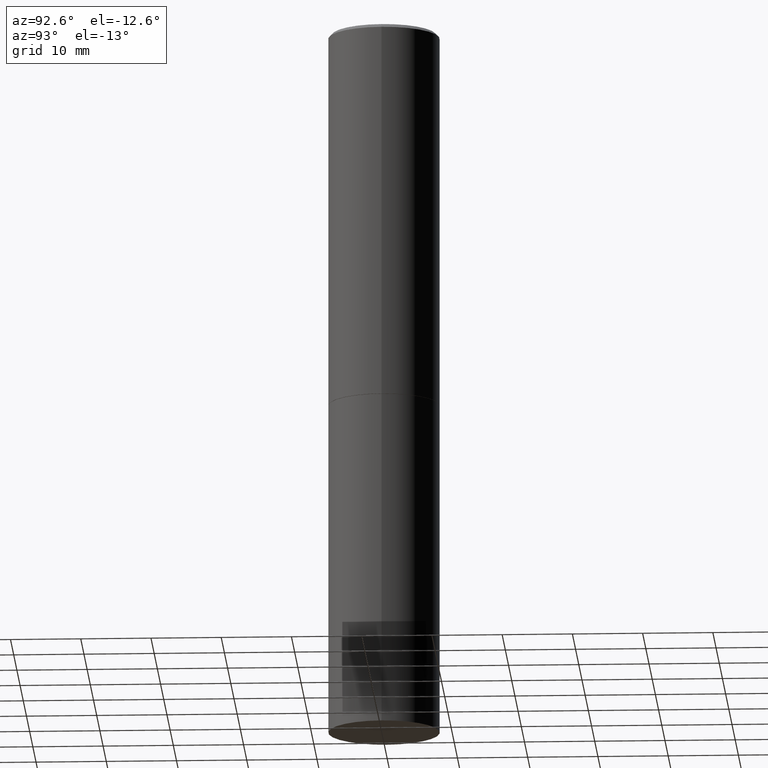
[diagram: clean part render]
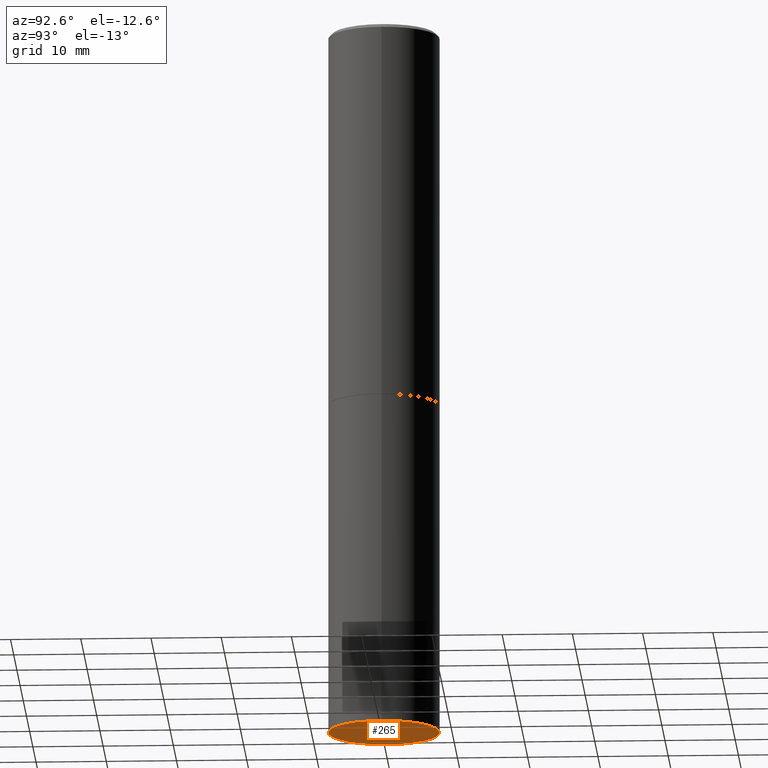
[diagram: same view with one face highlighted and labeled with its STEP entity id]
A machine part, auxiliary view. The second image highlights one B-rep face of the part: STEP entity #265.
In plain terms, the highlighted planar face has unit normal (0, -0, -1).
Its self-contained STEP definition (entity closure, byte-faithful):
#8 = ORIENTED_EDGE ( 'NONE', *, *, #171, .F. ) ;
#14 = VERTEX_POINT ( 'NONE', #268 ) ;
#17 = DIRECTION ( 'NONE',  ( -2.445468806185136597E-29, 3.491481338843145583E-15, 1.000000000000000000 ) ) ;
#27 = DIRECTION ( 'NONE',  ( -1.000000000000000000, 6.982962677686265922E-15, -4.876176775795935793E-29 ) ) ;
#43 = CARTESIAN_POINT ( 'NONE',  ( -0.3125000000000000000, -8.472215550956819896E-15, -4.000000000000000000 ) ) ;
#46 = AXIS2_PLACEMENT_3D ( 'NONE', #47, #213, #351 ) ;
#47 = CARTESIAN_POINT ( 'NONE',  ( 9.781875224740546387E-29, -1.396592535537258233E-14, -4.000000000000000000 ) ) ;
#49 = FACE_OUTER_BOUND ( 'NONE', #143, .T. ) ;
#51 = DIRECTION ( 'NONE',  ( 2.438088387897960049E-29, -3.491481338843145188E-15, -1.000000000000000000 ) ) ;
#67 = VERTEX_POINT ( 'NONE', #43 ) ;
#113 = PLANE ( 'NONE',  #310 ) ;
#134 = AXIS2_PLACEMENT_3D ( 'NONE', #149, #17, #329 ) ;
#137 = CIRCLE ( 'NONE', #46, 0.3125000000000000000 ) ;
#143 = EDGE_LOOP ( 'NONE', ( #318, #8 ) ) ;
#148 = EDGE_CURVE ( 'NONE', #14, #67, #137, .T. ) ;
#149 = CARTESIAN_POINT ( 'NONE',  ( 9.781875224740546387E-29, -1.396592535537258233E-14, -4.000000000000000000 ) ) ;
#171 = EDGE_CURVE ( 'NONE', #67, #14, #223, .T. ) ;
#213 = DIRECTION ( 'NONE',  ( -2.445468806185136597E-29, 3.491481338843145583E-15, 1.000000000000000000 ) ) ;
#223 = CIRCLE ( 'NONE', #134, 0.3125000000000000000 ) ;
#265 = ADVANCED_FACE ( 'NONE', ( #49 ), #113, .T. ) ;
#268 = CARTESIAN_POINT ( 'NONE',  ( 0.3125000000000000000, -1.614810119214954068E-14, -4.000000000000000000 ) ) ;
#310 = AXIS2_PLACEMENT_3D ( 'NONE', #312, #51, #27 ) ;
#312 = CARTESIAN_POINT ( 'NONE',  ( 2.182175836777055771E-15, 0.3124999999999860667, -4.000000000000000888 ) ) ;
#318 = ORIENTED_EDGE ( 'NONE', *, *, #148, .F. ) ;
#329 = DIRECTION ( 'NONE',  ( 1.000000000000000000, -6.982962677686269077E-15, 0.000000000000000000 ) ) ;
#351 = DIRECTION ( 'NONE',  ( 1.000000000000000000, -6.982962677686269077E-15, 0.000000000000000000 ) ) ;